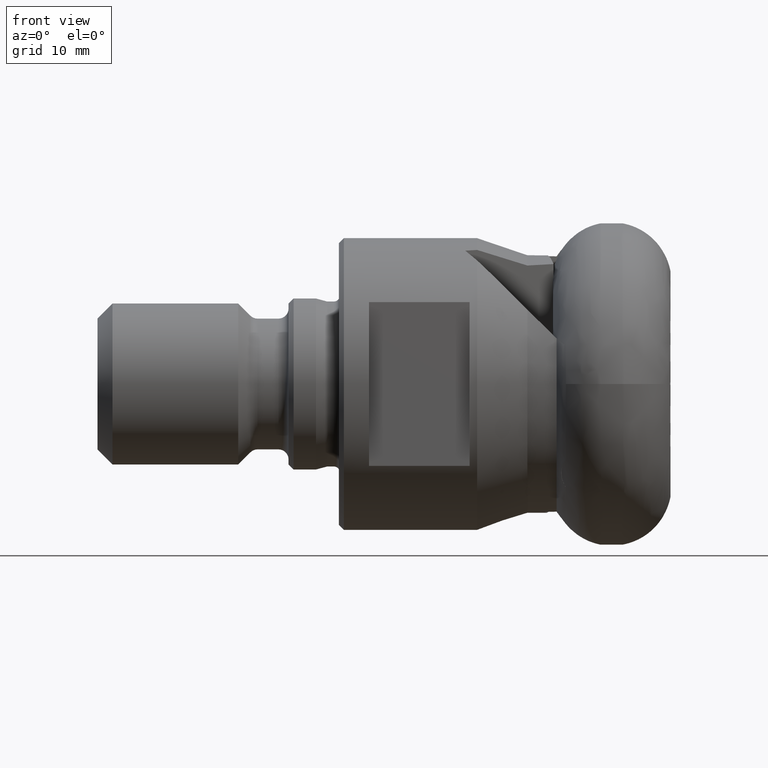
[diagram: clean part render]
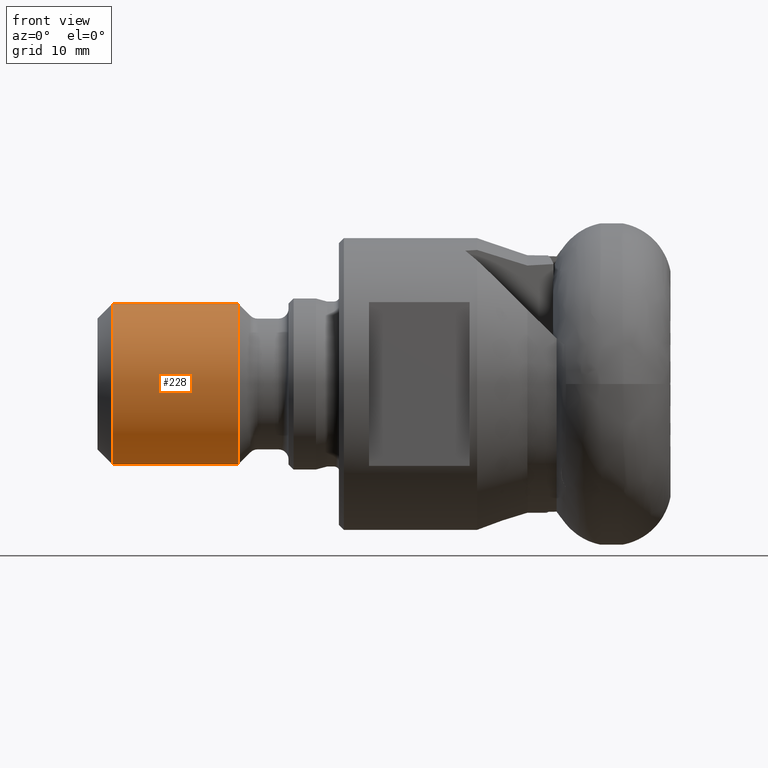
[diagram: same view with one face highlighted and labeled with its STEP entity id]
A machine part, front view. The second image highlights one B-rep face of the part: STEP entity #228.
In plain terms, the highlighted cylindrical surface (partial cylindrical patch) has radius 8 mm, axis along (1, -0, -0).
Its self-contained STEP definition (entity closure, byte-faithful):
#92 = CIRCLE ( 'NONE', #780, 7.999999999999992900 ) ;
#228 = ADVANCED_FACE ( 'Fl�che9', ( #3328 ), #665, .T. ) ;
#283 = CARTESIAN_POINT ( 'NONE',  ( -41.75000000000000000, 0.0000000000000000000, 0.0000000000000000000 ) ) ;
#315 = CARTESIAN_POINT ( 'NONE',  ( 0.0000000000000000000, 0.0000000000000000000, 0.0000000000000000000 ) ) ;
#362 = DIRECTION ( 'NONE',  ( 1.000000000000000000, -0.0000000000000000000, -0.0000000000000000000 ) ) ;
#475 = EDGE_CURVE ( 'NONE', #2458, #1487, #1003, .T. ) ;
#488 = AXIS2_PLACEMENT_3D ( 'NONE', #283, #3786, #1317 ) ;
#665 = CYLINDRICAL_SURFACE ( 'NONE', #2493, 7.999999999999992900 ) ;
#725 = CARTESIAN_POINT ( 'NONE',  ( 0.0000000000000000000, 9.797174393178817800E-016, 7.999999999999992900 ) ) ;
#731 = EDGE_CURVE ( 'NONE', #1728, #1487, #1611, .T. ) ;
#758 = DIRECTION ( 'NONE',  ( 1.000000000000000000, -0.0000000000000000000, -0.0000000000000000000 ) ) ;
#780 = AXIS2_PLACEMENT_3D ( 'NONE', #1126, #758, #3909 ) ;
#972 = EDGE_CURVE ( 'NONE', #2333, #1728, #4622, .T. ) ;
#1003 = LINE ( 'NONE', #1132, #1491 ) ;
#1126 = CARTESIAN_POINT ( 'NONE',  ( -54.25000000000000000, 0.0000000000000000000, 0.0000000000000000000 ) ) ;
#1132 = CARTESIAN_POINT ( 'NONE',  ( 0.0000000000000000000, 0.0000000000000000000, -7.999999999999992900 ) ) ;
#1231 = CARTESIAN_POINT ( 'NONE',  ( -54.25000000000000000, 0.0000000000000000000, -7.999999999999992900 ) ) ;
#1317 = DIRECTION ( 'NONE',  ( 0.0000000000000000000, 0.0000000000000000000, -1.000000000000000000 ) ) ;
#1487 = VERTEX_POINT ( 'NONE', #2594 ) ;
#1491 = VECTOR ( 'NONE', #362, 1000.000000000000000 ) ;
#1611 = CIRCLE ( 'NONE', #488, 7.999999999999992900 ) ;
#1728 = VERTEX_POINT ( 'NONE', #2030 ) ;
#1754 = DIRECTION ( 'NONE',  ( 0.0000000000000000000, 0.0000000000000000000, -1.000000000000000000 ) ) ;
#1821 = ORIENTED_EDGE ( 'NONE', *, *, #3318, .T. ) ;
#1992 = ORIENTED_EDGE ( 'NONE', *, *, #475, .T. ) ;
#2030 = CARTESIAN_POINT ( 'NONE',  ( -41.75000000000000000, 9.797174393178817800E-016, 7.999999999999992900 ) ) ;
#2079 = DIRECTION ( 'NONE',  ( 1.000000000000000000, -0.0000000000000000000, -0.0000000000000000000 ) ) ;
#2333 = VERTEX_POINT ( 'NONE', #3635 ) ;
#2458 = VERTEX_POINT ( 'NONE', #1231 ) ;
#2493 = AXIS2_PLACEMENT_3D ( 'NONE', #315, #4581, #1754 ) ;
#2563 = ORIENTED_EDGE ( 'NONE', *, *, #731, .F. ) ;
#2594 = CARTESIAN_POINT ( 'NONE',  ( -41.75000000000000000, 0.0000000000000000000, -7.999999999999992900 ) ) ;
#2833 = VECTOR ( 'NONE', #2079, 1000.000000000000000 ) ;
#3055 = EDGE_LOOP ( 'NONE', ( #3760, #1821, #1992, #2563 ) ) ;
#3318 = EDGE_CURVE ( 'NONE', #2333, #2458, #92, .T. ) ;
#3328 = FACE_OUTER_BOUND ( 'NONE', #3055, .T. ) ;
#3635 = CARTESIAN_POINT ( 'NONE',  ( -54.25000000000000000, 9.797174393178817800E-016, 7.999999999999992900 ) ) ;
#3760 = ORIENTED_EDGE ( 'NONE', *, *, #972, .F. ) ;
#3786 = DIRECTION ( 'NONE',  ( 1.000000000000000000, -0.0000000000000000000, -0.0000000000000000000 ) ) ;
#3909 = DIRECTION ( 'NONE',  ( 0.0000000000000000000, 0.0000000000000000000, -1.000000000000000000 ) ) ;
#4581 = DIRECTION ( 'NONE',  ( 1.000000000000000000, -0.0000000000000000000, -0.0000000000000000000 ) ) ;
#4622 = LINE ( 'NONE', #725, #2833 ) ;